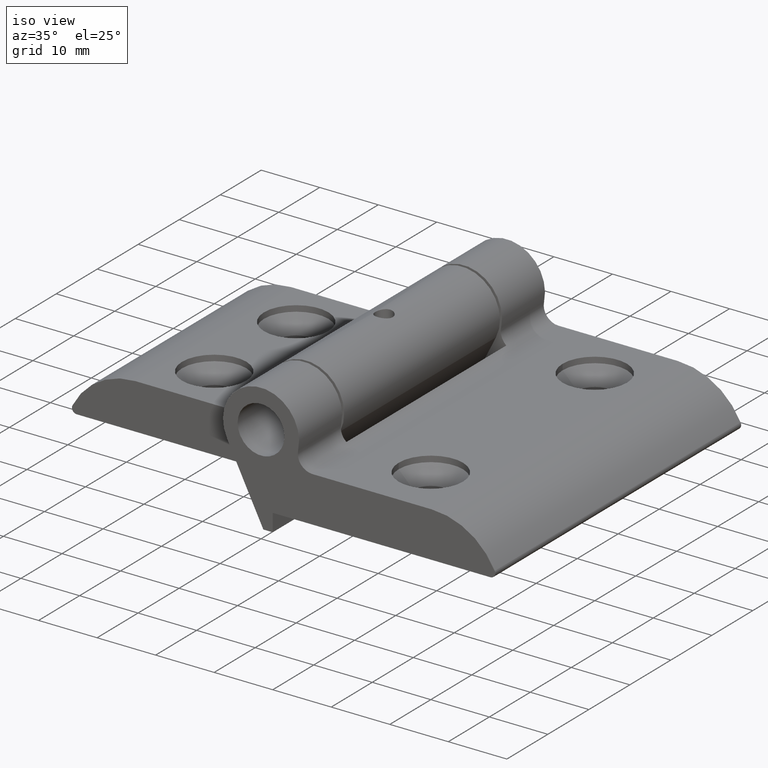
[diagram: clean part render]
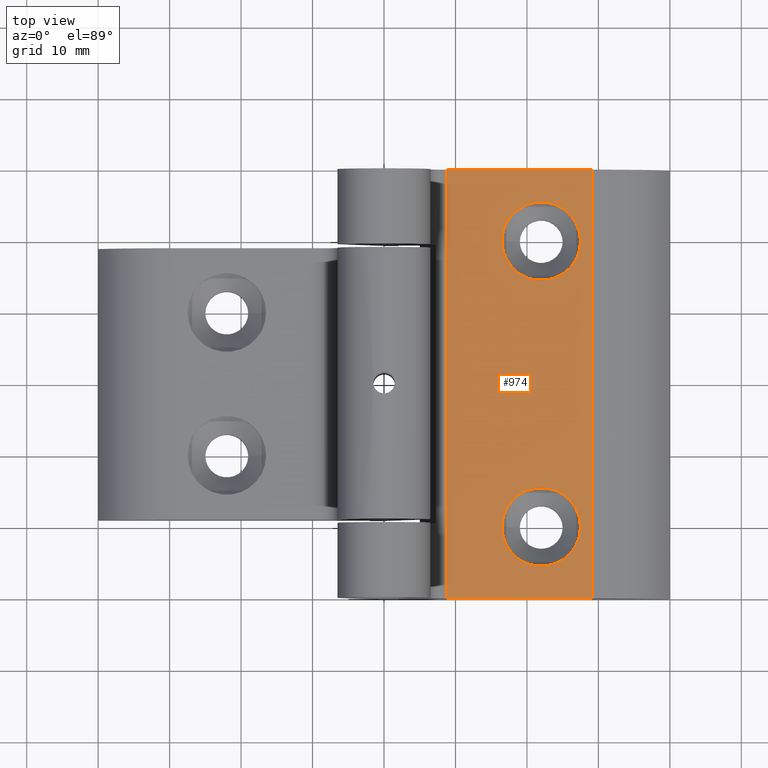
[diagram: tour spotlight — one face highlighted and labeled with its STEP entity id]
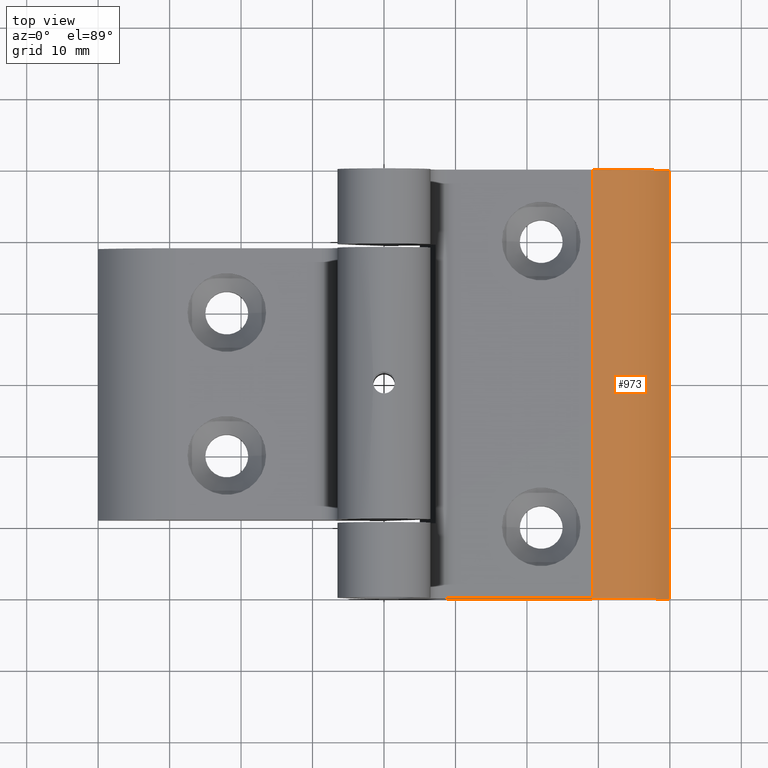
[diagram: tour spotlight — one face highlighted and labeled with its STEP entity id]
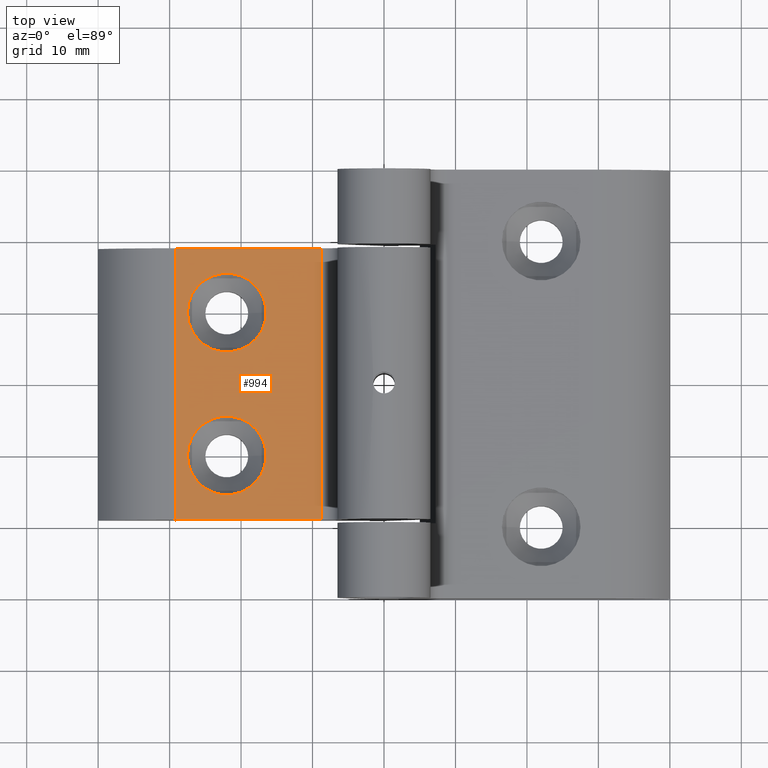
[diagram: tour spotlight — one face highlighted and labeled with its STEP entity id]
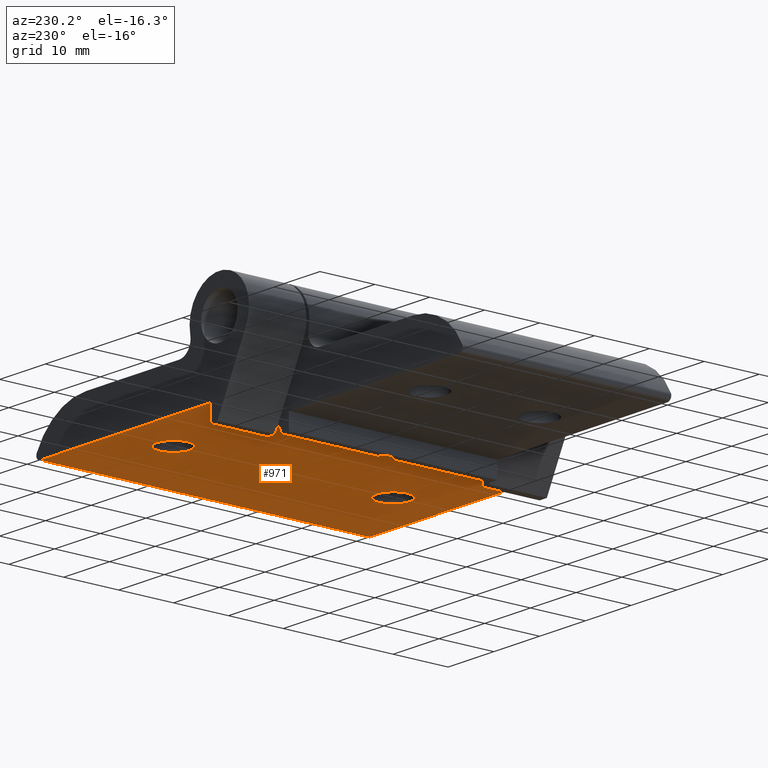
[diagram: tour spotlight — one face highlighted and labeled with its STEP entity id]
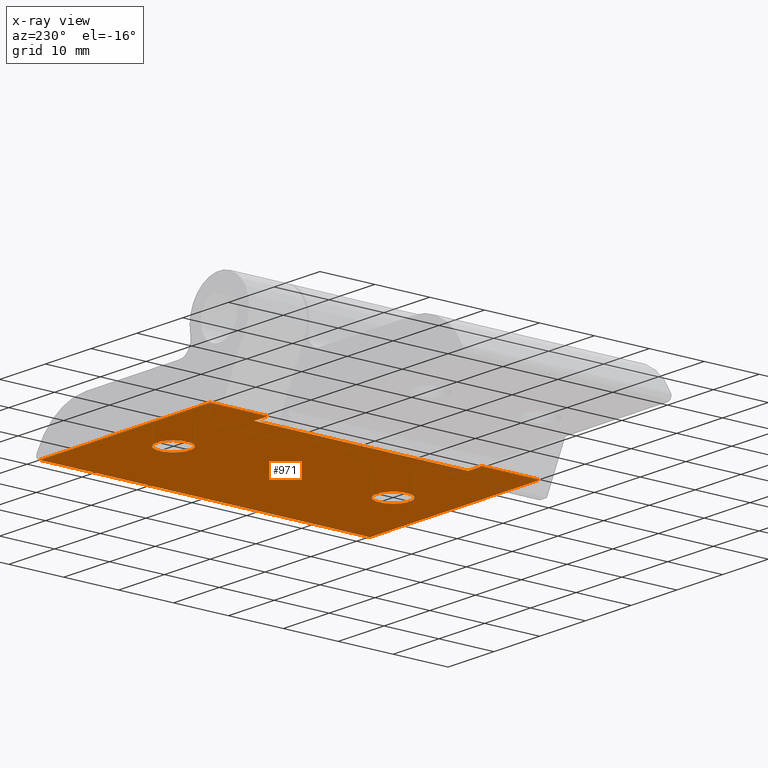
[diagram: x-ray of the same camera — body ghosted, this tour face saturated]
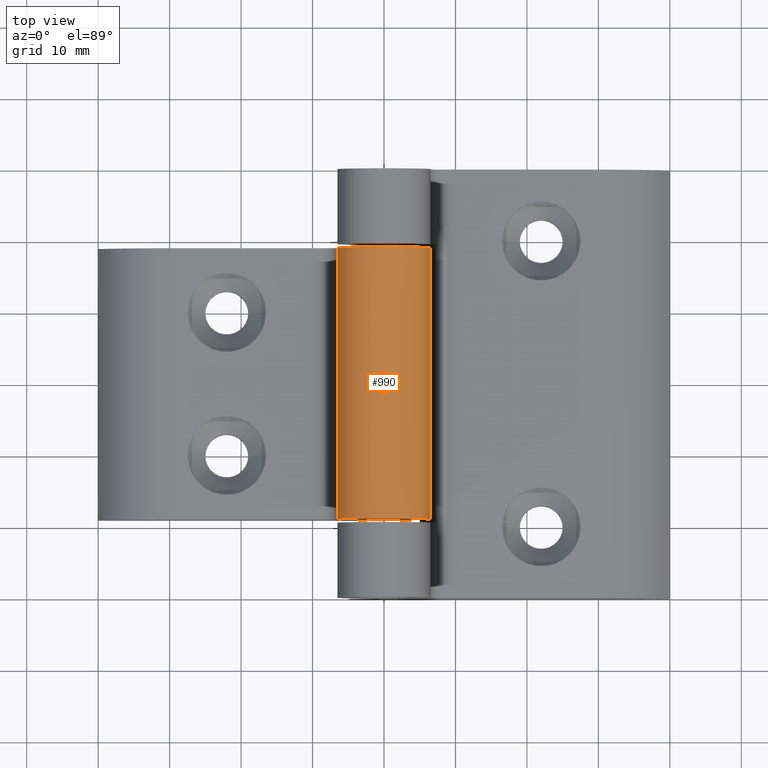
[diagram: tour spotlight — one face highlighted and labeled with its STEP entity id]
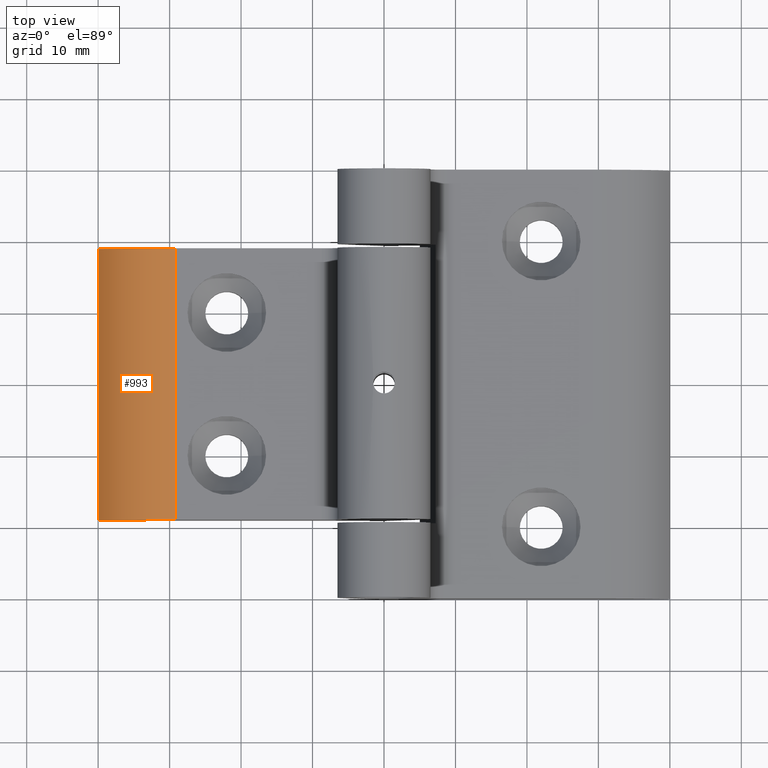
[diagram: tour spotlight — one face highlighted and labeled with its STEP entity id]
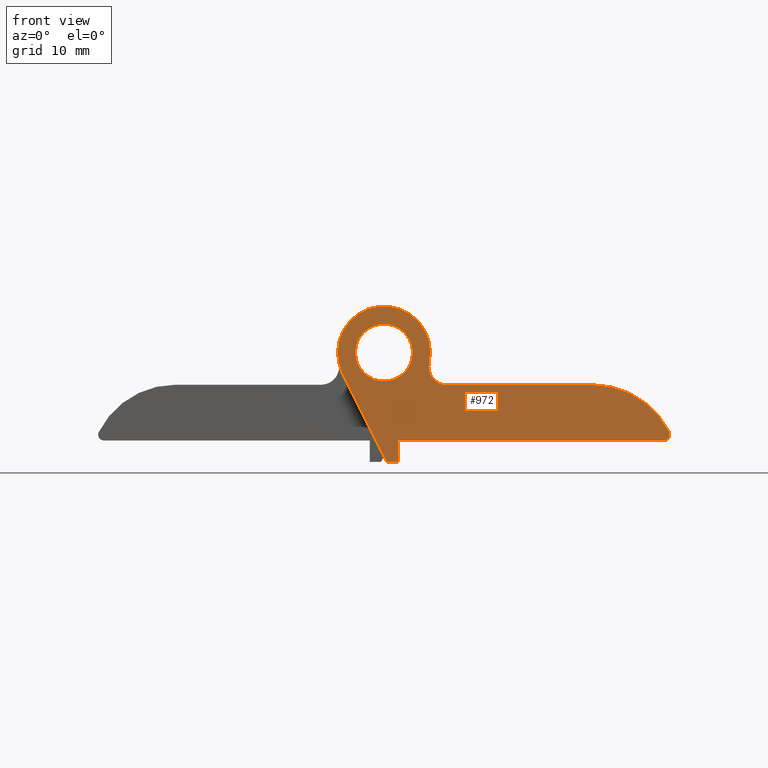
[diagram: tour spotlight — one face highlighted and labeled with its STEP entity id]
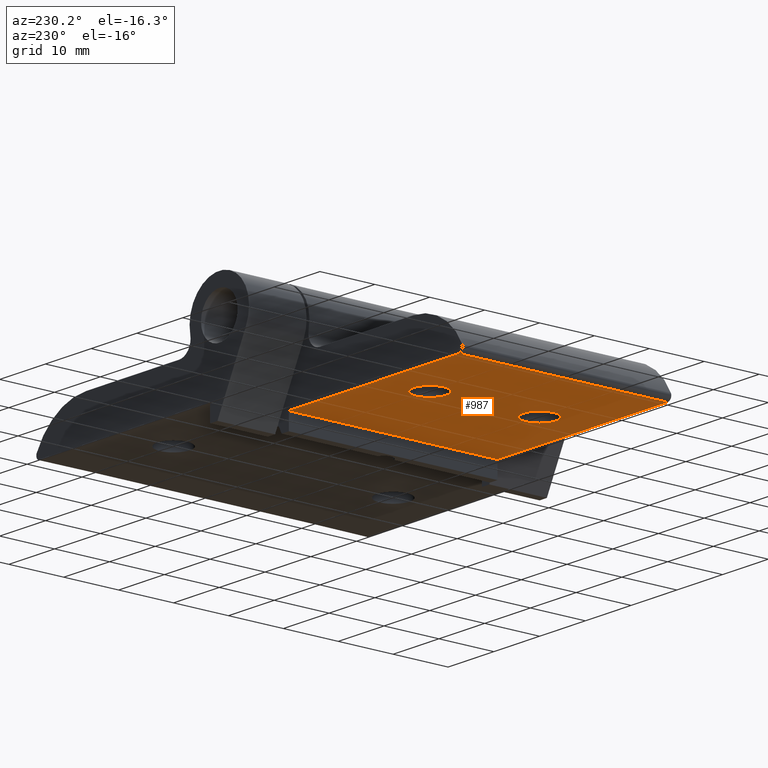
[diagram: tour spotlight — one face highlighted and labeled with its STEP entity id]
A machine part: a face-by-face anatomy tour. The part has 46 B-rep faces; the first image is the clean iso view, then the 8 largest visible faces are spotlighted one at a time (largest first), each with its STEP entity span.

Face 1 — top view, entity #974. In plain terms, the highlighted planar face has unit normal (0, 0, 1).
Definition (entity closure, byte-faithful):
#55=FACE_BOUND('',#183,.T.);
#56=FACE_BOUND('',#184,.T.);
#78=PLANE('',#1113);
#131=FACE_OUTER_BOUND('',#182,.T.);
#182=EDGE_LOOP('',(#794,#795,#796,#797));
#183=EDGE_LOOP('',(#798,#799));
#184=EDGE_LOOP('',(#800,#801));
#250=LINE('',#1567,#319);
#255=LINE('',#1643,#324);
#256=LINE('',#1647,#325);
#257=LINE('',#1649,#326);
#319=VECTOR('',#1287,10.);
#324=VECTOR('',#1310,10.);
#325=VECTOR('',#1315,10.);
#326=VECTOR('',#1318,10.);
#364=CIRCLE('',#1074,5.5);
#365=CIRCLE('',#1075,5.5);
#366=CIRCLE('',#1077,5.5);
#367=CIRCLE('',#1078,5.5);
#419=VERTEX_POINT('',#1475);
#420=VERTEX_POINT('',#1476);
#421=VERTEX_POINT('',#1481);
#422=VERTEX_POINT('',#1482);
#451=VERTEX_POINT('',#1564);
#452=VERTEX_POINT('',#1566);
#462=VERTEX_POINT('',#1641);
#463=VERTEX_POINT('',#1645);
#525=EDGE_CURVE('',#419,#420,#364,.T.);
#526=EDGE_CURVE('',#420,#419,#365,.T.);
#528=EDGE_CURVE('',#421,#422,#366,.T.);
#529=EDGE_CURVE('',#422,#421,#367,.T.);
#570=EDGE_CURVE('',#452,#451,#250,.T.);
#586=EDGE_CURVE('',#462,#451,#255,.T.);
#588=EDGE_CURVE('',#462,#463,#256,.T.);
#589=EDGE_CURVE('',#452,#463,#257,.T.);
#794=ORIENTED_EDGE('',*,*,#588,.T.);
#795=ORIENTED_EDGE('',*,*,#589,.F.);
#796=ORIENTED_EDGE('',*,*,#570,.T.);
#797=ORIENTED_EDGE('',*,*,#586,.F.);
#798=ORIENTED_EDGE('',*,*,#525,.T.);
#799=ORIENTED_EDGE('',*,*,#526,.T.);
#800=ORIENTED_EDGE('',*,*,#528,.T.);
#801=ORIENTED_EDGE('',*,*,#529,.T.);
#974=ADVANCED_FACE('',(#131,#55,#56),#78,.T.);
#1074=AXIS2_PLACEMENT_3D('',#1477,#1201,#1202);
#1075=AXIS2_PLACEMENT_3D('',#1478,#1203,#1204);
#1077=AXIS2_PLACEMENT_3D('',#1483,#1208,#1209);
#1078=AXIS2_PLACEMENT_3D('',#1484,#1210,#1211);
#1113=AXIS2_PLACEMENT_3D('',#1648,#1316,#1317);
#1201=DIRECTION('center_axis',(-1.087908341283E-16,0.,-1.));
#1202=DIRECTION('ref_axis',(1.,0.,-1.087908341283E-16));
#1203=DIRECTION('center_axis',(-1.087908341283E-16,0.,-1.));
#1204=DIRECTION('ref_axis',(1.,0.,-1.087908341283E-16));
#1208=DIRECTION('center_axis',(-1.087908341283E-16,0.,-1.));
#1209=DIRECTION('ref_axis',(1.,0.,-1.087908341283E-16));
#1210=DIRECTION('center_axis',(-1.087908341283E-16,0.,-1.));
#1211=DIRECTION('ref_axis',(1.,0.,-1.087908341283E-16));
#1287=DIRECTION('',(0.,-1.,0.));
#1310=DIRECTION('',(-1.,0.,1.087908341283E-16));
#1315=DIRECTION('',(0.,1.,0.));
#1316=DIRECTION('center_axis',(1.087908341283E-16,0.,1.));
#1317=DIRECTION('ref_axis',(1.,0.,-1.087908341283E-16));
#1318=DIRECTION('',(1.,0.,-1.087908341283E-16));
#1475=CARTESIAN_POINT('',(27.5,-20.,-4.5));
#1476=CARTESIAN_POINT('',(16.5,-20.,-4.5));
#1477=CARTESIAN_POINT('Origin',(22.,-20.,-4.5));
#1478=CARTESIAN_POINT('Origin',(22.,-20.,-4.5));
#1481=CARTESIAN_POINT('',(27.5,20.,-4.5));
#1482=CARTESIAN_POINT('',(16.5,20.,-4.5));
#1483=CARTESIAN_POINT('Origin',(22.,20.,-4.5));
#1484=CARTESIAN_POINT('Origin',(22.,20.,-4.5));
#1564=CARTESIAN_POINT('',(8.77496438739212,-30.,-4.5));
#1566=CARTESIAN_POINT('',(8.77496438739212,30.,-4.5));
#1567=CARTESIAN_POINT('',(8.77496438739212,0.,-4.5));
#1641=CARTESIAN_POINT('',(29.1851953323234,-30.,-4.5));
#1643=CARTESIAN_POINT('',(8.77496438739212,-30.,-4.5));
#1645=CARTESIAN_POINT('',(29.1851953323234,30.,-4.5));
#1647=CARTESIAN_POINT('',(29.1851953323234,0.,-4.5));
#1648=CARTESIAN_POINT('Origin',(8.77496438739212,0.,-4.5));
#1649=CARTESIAN_POINT('',(8.77496438739212,30.,-4.5));

Face 2 — top view, entity #973. In plain terms, the highlighted cylindrical surface (partial cylindrical patch) has radius 12 mm, axis along (0, 1, 0).
Definition (entity closure, byte-faithful):
#33=B_SPLINE_CURVE_WITH_KNOTS('',3,(#1629,#1630,#1631,#1632),
 .UNSPECIFIED.,.F.,.F.,(4,4),(0.,6.),.UNSPECIFIED.);
#96=CYLINDRICAL_SURFACE('',#1111,12.);
#130=FACE_OUTER_BOUND('',#181,.T.);
#181=EDGE_LOOP('',(#790,#791,#792,#793));
#256=LINE('',#1647,#325);
#325=VECTOR('',#1315,10.);
#383=CIRCLE('',#1110,12.);
#384=CIRCLE('',#1112,12.);
#460=VERTEX_POINT('',#1623);
#461=VERTEX_POINT('',#1628);
#462=VERTEX_POINT('',#1641);
#463=VERTEX_POINT('',#1645);
#581=EDGE_CURVE('',#460,#461,#33,.T.);
#585=EDGE_CURVE('',#461,#462,#383,.T.);
#587=EDGE_CURVE('',#463,#460,#384,.T.);
#588=EDGE_CURVE('',#462,#463,#256,.T.);
#790=ORIENTED_EDGE('',*,*,#581,.F.);
#791=ORIENTED_EDGE('',*,*,#587,.F.);
#792=ORIENTED_EDGE('',*,*,#588,.F.);
#793=ORIENTED_EDGE('',*,*,#585,.F.);
#973=ADVANCED_FACE('',(#130),#96,.T.);
#1110=AXIS2_PLACEMENT_3D('',#1642,#1308,#1309);
#1111=AXIS2_PLACEMENT_3D('',#1644,#1311,#1312);
#1112=AXIS2_PLACEMENT_3D('',#1646,#1313,#1314);
#1308=DIRECTION('center_axis',(0.,-1.,0.));
#1309=DIRECTION('ref_axis',(0.,0.,1.));
#1311=DIRECTION('center_axis',(0.,1.,0.));
#1312=DIRECTION('ref_axis',(0.,0.,1.));
#1313=DIRECTION('center_axis',(0.,1.,0.));
#1314=DIRECTION('ref_axis',(0.,0.,1.));
#1315=DIRECTION('',(0.,1.,0.));
#1623=CARTESIAN_POINT('',(39.9140261061395,30.,-11.1248543994776));
#1628=CARTESIAN_POINT('',(39.9140261061395,-30.,-11.1248543994776));
#1629=CARTESIAN_POINT('Ctrl Pts',(39.9140261061395,30.,-11.1248543994776));
#1630=CARTESIAN_POINT('Ctrl Pts',(39.9140261061395,10.,-11.1248543994776));
#1631=CARTESIAN_POINT('Ctrl Pts',(39.9140261061395,-10.,-11.1248543994776));
#1632=CARTESIAN_POINT('Ctrl Pts',(39.9140261061395,-30.,-11.1248543994776));
#1641=CARTESIAN_POINT('',(29.1851953323234,-30.,-4.5));
#1642=CARTESIAN_POINT('Origin',(29.1851953323234,-30.,-16.5));
#1644=CARTESIAN_POINT('Origin',(29.1851953323234,0.,-16.5));
#1645=CARTESIAN_POINT('',(29.1851953323234,30.,-4.5));
#1646=CARTESIAN_POINT('Origin',(29.1851953323234,30.,-16.5));
#1647=CARTESIAN_POINT('',(29.1851953323234,0.,-4.5));

Face 3 — top view, entity #994. In plain terms, the highlighted planar face has unit normal (-0, -0, 1).
Definition (entity closure, byte-faithful):
#64=FACE_BOUND('',#212,.T.);
#65=FACE_BOUND('',#213,.T.);
#85=PLANE('',#1159);
#151=FACE_OUTER_BOUND('',#211,.T.);
#211=EDGE_LOOP('',(#926,#927,#928,#929));
#212=EDGE_LOOP('',(#930,#931));
#213=EDGE_LOOP('',(#932,#933));
#275=LINE('',#1906,#344);
#278=LINE('',#1915,#347);
#283=LINE('',#1930,#352);
#284=LINE('',#1932,#353);
#344=VECTOR('',#1406,10.);
#347=VECTOR('',#1415,10.);
#352=VECTOR('',#1434,10.);
#353=VECTOR('',#1437,10.);
#396=CIRCLE('',#1137,5.5);
#397=CIRCLE('',#1138,5.5);
#398=CIRCLE('',#1140,5.5);
#399=CIRCLE('',#1141,5.5);
#488=VERTEX_POINT('',#1819);
#489=VERTEX_POINT('',#1820);
#490=VERTEX_POINT('',#1825);
#491=VERTEX_POINT('',#1826);
#503=VERTEX_POINT('',#1903);
#504=VERTEX_POINT('',#1905);
#507=VERTEX_POINT('',#1914);
#510=VERTEX_POINT('',#1928);
#621=EDGE_CURVE('',#488,#489,#396,.T.);
#622=EDGE_CURVE('',#489,#488,#397,.T.);
#624=EDGE_CURVE('',#490,#491,#398,.T.);
#625=EDGE_CURVE('',#491,#490,#399,.T.);
#641=EDGE_CURVE('',#503,#504,#275,.T.);
#646=EDGE_CURVE('',#507,#504,#278,.T.);
#654=EDGE_CURVE('',#503,#510,#283,.T.);
#655=EDGE_CURVE('',#507,#510,#284,.T.);
#926=ORIENTED_EDGE('',*,*,#654,.T.);
#927=ORIENTED_EDGE('',*,*,#655,.F.);
#928=ORIENTED_EDGE('',*,*,#646,.T.);
#929=ORIENTED_EDGE('',*,*,#641,.F.);
#930=ORIENTED_EDGE('',*,*,#621,.T.);
#931=ORIENTED_EDGE('',*,*,#622,.T.);
#932=ORIENTED_EDGE('',*,*,#624,.T.);
#933=ORIENTED_EDGE('',*,*,#625,.T.);
#994=ADVANCED_FACE('',(#151,#64,#65),#85,.T.);
#1137=AXIS2_PLACEMENT_3D('',#1821,#1376,#1377);
#1138=AXIS2_PLACEMENT_3D('',#1822,#1378,#1379);
#1140=AXIS2_PLACEMENT_3D('',#1827,#1383,#1384);
#1141=AXIS2_PLACEMENT_3D('',#1828,#1385,#1386);
#1159=AXIS2_PLACEMENT_3D('',#1931,#1435,#1436);
#1376=DIRECTION('center_axis',(-1.087908341283E-16,0.,-1.));
#1377=DIRECTION('ref_axis',(1.,0.,-1.087908341283E-16));
#1378=DIRECTION('center_axis',(-1.087908341283E-16,0.,-1.));
#1379=DIRECTION('ref_axis',(1.,0.,-1.087908341283E-16));
#1383=DIRECTION('center_axis',(-1.087908341283E-16,0.,-1.));
#1384=DIRECTION('ref_axis',(1.,0.,-1.087908341283E-16));
#1385=DIRECTION('center_axis',(-1.087908341283E-16,0.,-1.));
#1386=DIRECTION('ref_axis',(1.,0.,-1.087908341283E-16));
#1406=DIRECTION('',(-1.,0.,1.087908341283E-16));
#1415=DIRECTION('',(0.,-1.,0.));
#1434=DIRECTION('',(0.,1.,0.));
#1435=DIRECTION('center_axis',(1.087908341283E-16,0.,1.));
#1436=DIRECTION('ref_axis',(1.,0.,-1.087908341283E-16));
#1437=DIRECTION('',(1.,0.,-1.087908341283E-16));
#1819=CARTESIAN_POINT('',(27.5,-10.,-4.5));
#1820=CARTESIAN_POINT('',(16.5,-10.,-4.5));
#1821=CARTESIAN_POINT('Origin',(22.,-10.,-4.5));
#1822=CARTESIAN_POINT('Origin',(22.,-10.,-4.5));
#1825=CARTESIAN_POINT('',(27.5,10.,-4.5));
#1826=CARTESIAN_POINT('',(16.5,10.,-4.5));
#1827=CARTESIAN_POINT('Origin',(22.,10.,-4.5));
#1828=CARTESIAN_POINT('Origin',(22.,10.,-4.5));
#1903=CARTESIAN_POINT('',(29.1851953323234,-19.,-4.5));
#1905=CARTESIAN_POINT('',(8.77496438739212,-19.,-4.5));
#1906=CARTESIAN_POINT('',(8.77496438739212,-19.,-4.5));
#1914=CARTESIAN_POINT('',(8.77496438739212,19.,-4.5));
#1915=CARTESIAN_POINT('',(8.77496438739212,0.,-4.5));
#1928=CARTESIAN_POINT('',(29.1851953323234,19.,-4.5));
#1930=CARTESIAN_POINT('',(29.1851953323234,0.,-4.5));
#1931=CARTESIAN_POINT('Origin',(8.77496438739212,0.,-4.5));
#1932=CARTESIAN_POINT('',(8.77496438739212,19.,-4.5));

Face 4 — auxiliary view, entity #971. An x-ray twin of the same camera follows (body ghosted, this face saturated) — the face is partly hidden behind the body. In plain terms, the highlighted planar face has unit normal (0, 0, -1).
Definition (entity closure, byte-faithful):
#30=B_SPLINE_CURVE_WITH_KNOTS('',3,(#1612,#1613,#1614,#1615),
 .UNSPECIFIED.,.F.,.F.,(4,4),(-6.,0.),.UNSPECIFIED.);
#52=FACE_BOUND('',#177,.T.);
#53=FACE_BOUND('',#178,.T.);
#76=PLANE('',#1108);
#128=FACE_OUTER_BOUND('',#176,.T.);
#176=EDGE_LOOP('',(#769,#770,#771,#772,#773,#774,#775,#776));
#177=EDGE_LOOP('',(#777));
#178=EDGE_LOOP('',(#778));
#223=LINE('',#1493,#292);
#227=LINE('',#1507,#296);
#233=LINE('',#1522,#302);
#234=LINE('',#1529,#303);
#239=LINE('',#1538,#308);
#253=LINE('',#1638,#322);
#254=LINE('',#1639,#323);
#292=VECTOR('',#1218,10.);
#296=VECTOR('',#1230,10.);
#302=VECTOR('',#1242,10.);
#303=VECTOR('',#1249,10.);
#308=VECTOR('',#1256,10.);
#322=VECTOR('',#1304,10.);
#323=VECTOR('',#1305,10.);
#358=CIRCLE('',#1065,3.);
#363=CIRCLE('',#1072,3.);
#413=VERTEX_POINT('',#1457);
#418=VERTEX_POINT('',#1471);
#425=VERTEX_POINT('',#1490);
#426=VERTEX_POINT('',#1492);
#432=VERTEX_POINT('',#1506);
#438=VERTEX_POINT('',#1520);
#441=VERTEX_POINT('',#1528);
#444=VERTEX_POINT('',#1536);
#457=VERTEX_POINT('',#1604);
#458=VERTEX_POINT('',#1611);
#517=EDGE_CURVE('',#413,#413,#358,.T.);
#524=EDGE_CURVE('',#418,#418,#363,.T.);
#533=EDGE_CURVE('',#426,#425,#223,.T.);
#540=EDGE_CURVE('',#425,#432,#227,.T.);
#548=EDGE_CURVE('',#432,#438,#233,.T.);
#551=EDGE_CURVE('',#441,#426,#234,.T.);
#556=EDGE_CURVE('',#438,#444,#239,.T.);
#578=EDGE_CURVE('',#457,#458,#30,.T.);
#583=EDGE_CURVE('',#458,#444,#253,.T.);
#584=EDGE_CURVE('',#441,#457,#254,.T.);
#769=ORIENTED_EDGE('',*,*,#548,.T.);
#770=ORIENTED_EDGE('',*,*,#556,.T.);
#771=ORIENTED_EDGE('',*,*,#583,.F.);
#772=ORIENTED_EDGE('',*,*,#578,.F.);
#773=ORIENTED_EDGE('',*,*,#584,.F.);
#774=ORIENTED_EDGE('',*,*,#551,.T.);
#775=ORIENTED_EDGE('',*,*,#533,.T.);
#776=ORIENTED_EDGE('',*,*,#540,.T.);
#777=ORIENTED_EDGE('',*,*,#517,.T.);
#778=ORIENTED_EDGE('',*,*,#524,.T.);
#971=ADVANCED_FACE('',(#128,#52,#53),#76,.T.);
#1065=AXIS2_PLACEMENT_3D('',#1459,#1181,#1182);
#1072=AXIS2_PLACEMENT_3D('',#1473,#1197,#1198);
#1108=AXIS2_PLACEMENT_3D('',#1637,#1302,#1303);
#1181=DIRECTION('center_axis',(0.,0.,1.));
#1182=DIRECTION('ref_axis',(1.,0.,-1.087908341283E-16));
#1197=DIRECTION('center_axis',(0.,0.,1.));
#1198=DIRECTION('ref_axis',(1.,0.,-1.087908341283E-16));
#1218=DIRECTION('',(1.,9.14356323852182E-17,0.));
#1230=DIRECTION('',(0.,1.,0.));
#1242=DIRECTION('',(-1.,-9.14356323852182E-17,0.));
#1249=DIRECTION('',(0.,1.,0.));
#1256=DIRECTION('',(0.,1.,0.));
#1302=DIRECTION('center_axis',(0.,0.,-1.));
#1303=DIRECTION('ref_axis',(-1.,0.,0.));
#1304=DIRECTION('',(-1.,0.,0.));
#1305=DIRECTION('',(1.,0.,0.));
#1457=CARTESIAN_POINT('',(19.,20.,-12.3));
#1459=CARTESIAN_POINT('Origin',(22.,20.,-12.3));
#1471=CARTESIAN_POINT('',(19.,-20.,-12.3));
#1473=CARTESIAN_POINT('Origin',(22.,-20.,-12.3));
#1490=CARTESIAN_POINT('',(5.,-19.5,-12.3));
#1492=CARTESIAN_POINT('',(2.,-19.5,-12.3));
#1493=CARTESIAN_POINT('',(20.3970287649531,-19.5,-12.3));
#1506=CARTESIAN_POINT('',(5.,19.5,-12.3));
#1507=CARTESIAN_POINT('',(5.,0.,-12.3));
#1520=CARTESIAN_POINT('',(2.,19.5,-12.3));
#1522=CARTESIAN_POINT('',(20.3970287649531,19.5,-12.3));
#1528=CARTESIAN_POINT('',(2.,-30.,-12.3));
#1529=CARTESIAN_POINT('',(2.,0.,-12.3));
#1536=CARTESIAN_POINT('',(2.,30.,-12.3));
#1538=CARTESIAN_POINT('',(2.,0.,-12.3));
#1604=CARTESIAN_POINT('',(39.1883954511527,-30.,-12.3));
#1611=CARTESIAN_POINT('',(39.1883954511527,30.,-12.3));
#1612=CARTESIAN_POINT('Ctrl Pts',(39.1883954511527,-30.,-12.3));
#1613=CARTESIAN_POINT('Ctrl Pts',(39.1883954511527,-10.,-12.3));
#1614=CARTESIAN_POINT('Ctrl Pts',(39.1883954511527,10.,-12.3));
#1615=CARTESIAN_POINT('Ctrl Pts',(39.1883954511527,30.,-12.3));
#1637=CARTESIAN_POINT('Origin',(40.,0.,-12.3));
#1638=CARTESIAN_POINT('',(40.,30.,-12.3));
#1639=CARTESIAN_POINT('',(40.,-30.,-12.3));

Face 5 — top view, entity #990. In plain terms, the highlighted cylindrical surface (partial cylindrical patch) has radius 6.5 mm, axis along (-0, -1, -0).
Definition (entity closure, byte-faithful):
#37=B_SPLINE_CURVE_WITH_KNOTS('',3,(#1701,#1702,#1703,#1704,#1705,#1706,
#1707,#1708,#1709,#1710),.UNSPECIFIED.,.F.,.F.,(4,2,2,2,4),(0.226894930763908,
0.28361581006064,0.340336689357371,0.397063275442594,0.453789861527817),
 .UNSPECIFIED.);
#38=B_SPLINE_CURVE_WITH_KNOTS('',3,(#1712,#1713,#1714,#1715,#1716,#1717,
#1718,#1719,#1720,#1721,#1722,#1723,#1724,#1725,#1726,#1727,#1728,#1729,
#1730),.UNSPECIFIED.,.F.,.F.,(4,2,2,2,3,2,2,2,4),(0.680684792291726,0.737405671588457,
0.794126550885188,0.850853136970411,0.907579723055634,0.964306309140857,
1.02103289522608,1.07775377452281,1.13447465381954),.UNSPECIFIED.);
#39=B_SPLINE_CURVE_WITH_KNOTS('',3,(#1731,#1732,#1733,#1734,#1735,#1736,
#1737,#1738,#1739,#1740),.UNSPECIFIED.,.F.,.F.,(4,2,2,2,4),(0.453789861527817,
0.51051644761304,0.567243033698263,0.623963912994995,0.680684792291726),
 .UNSPECIFIED.);
#63=FACE_BOUND('',#207,.T.);
#105=CYLINDRICAL_SURFACE('',#1153,6.5);
#147=FACE_OUTER_BOUND('',#206,.T.);
#206=EDGE_LOOP('',(#904,#905,#906,#907));
#207=EDGE_LOOP('',(#908,#909,#910));
#279=LINE('',#1918,#348);
#280=LINE('',#1922,#349);
#348=VECTOR('',#1418,10.);
#349=VECTOR('',#1423,10.);
#405=CIRCLE('',#1150,6.5);
#407=CIRCLE('',#1154,6.5);
#469=VERTEX_POINT('',#1699);
#470=VERTEX_POINT('',#1700);
#471=VERTEX_POINT('',#1711);
#505=VERTEX_POINT('',#1907);
#506=VERTEX_POINT('',#1909);
#508=VERTEX_POINT('',#1916);
#509=VERTEX_POINT('',#1920);
#596=EDGE_CURVE('',#469,#470,#37,.T.);
#597=EDGE_CURVE('',#471,#469,#38,.T.);
#598=EDGE_CURVE('',#470,#471,#39,.T.);
#643=EDGE_CURVE('',#505,#506,#405,.T.);
#648=EDGE_CURVE('',#505,#508,#279,.T.);
#649=EDGE_CURVE('',#509,#508,#407,.T.);
#650=EDGE_CURVE('',#506,#509,#280,.T.);
#904=ORIENTED_EDGE('',*,*,#648,.T.);
#905=ORIENTED_EDGE('',*,*,#649,.F.);
#906=ORIENTED_EDGE('',*,*,#650,.F.);
#907=ORIENTED_EDGE('',*,*,#643,.F.);
#908=ORIENTED_EDGE('',*,*,#596,.T.);
#909=ORIENTED_EDGE('',*,*,#598,.T.);
#910=ORIENTED_EDGE('',*,*,#597,.T.);
#990=ADVANCED_FACE('',(#147,#63),#105,.T.);
#1150=AXIS2_PLACEMENT_3D('',#1910,#1409,#1410);
#1153=AXIS2_PLACEMENT_3D('',#1919,#1419,#1420);
#1154=AXIS2_PLACEMENT_3D('',#1921,#1421,#1422);
#1409=DIRECTION('center_axis',(0.,-1.,0.));
#1410=DIRECTION('ref_axis',(-0.893929642887644,0.,-0.448207310925167));
#1418=DIRECTION('',(0.,1.,0.));
#1419=DIRECTION('center_axis',(0.,1.,0.));
#1420=DIRECTION('ref_axis',(-0.12004272317629,0.,0.992768726649072));
#1421=DIRECTION('center_axis',(0.,1.,0.));
#1422=DIRECTION('ref_axis',(-0.893929642887644,0.,-0.448207310925167));
#1423=DIRECTION('',(0.,1.,0.));
#1699=CARTESIAN_POINT('',(7.0714042183395E-16,-1.5,6.5));
#1700=CARTESIAN_POINT('',(-1.5,-1.26542979455588E-16,6.32455532033676));
#1701=CARTESIAN_POINT('Ctrl Pts',(3.81639164714898E-16,-1.5,6.5));
#1702=CARTESIAN_POINT('Ctrl Pts',(-0.18906959765577,-1.5,6.5));
#1703=CARTESIAN_POINT('Ctrl Pts',(-0.390282025550469,-1.46207527444948,
6.49092121899911));
#1704=CARTESIAN_POINT('Ctrl Pts',(-0.759656280108607,-1.30878053074464,
6.45811897296793));
#1705=CARTESIAN_POINT('Ctrl Pts',(-0.927872813177317,-1.19344753038233,
6.43484008136329));
#1706=CARTESIAN_POINT('Ctrl Pts',(-1.19346089035451,-0.927859453205128,
6.39091304734004));
#1707=CARTESIAN_POINT('Ctrl Pts',(-1.30878345284885,-0.759648529201041,
6.36735734859203));
#1708=CARTESIAN_POINT('Ctrl Pts',(-1.46207059898713,-0.3902940012866,6.33391691123816));
#1709=CARTESIAN_POINT('Ctrl Pts',(-1.5,-0.189088620284077,6.32455532033676));
#1710=CARTESIAN_POINT('Ctrl Pts',(-1.5,-6.93889390390723E-17,6.32455532033676));
#1711=CARTESIAN_POINT('',(7.0714042183395E-16,1.5,6.5));
#1712=CARTESIAN_POINT('Ctrl Pts',(9.0205620750794E-16,1.5,6.5));
#1713=CARTESIAN_POINT('Ctrl Pts',(0.189069597655771,1.5,6.5));
#1714=CARTESIAN_POINT('Ctrl Pts',(0.39028202555047,1.46207527444948,6.49092121899911));
#1715=CARTESIAN_POINT('Ctrl Pts',(0.759656280108608,1.30878053074464,6.45811897296793));
#1716=CARTESIAN_POINT('Ctrl Pts',(0.927872813177318,1.19344753038233,6.43484008136329));
#1717=CARTESIAN_POINT('Ctrl Pts',(1.19346089035452,0.927859453205128,6.39091304734004));
#1718=CARTESIAN_POINT('Ctrl Pts',(1.30878345284885,0.759648529201041,6.36735734859203));
#1719=CARTESIAN_POINT('Ctrl Pts',(1.46207059898713,0.3902940012866,6.33391691123815));
#1720=CARTESIAN_POINT('Ctrl Pts',(1.5,0.189088620284078,6.32455532033676));
#1721=CARTESIAN_POINT('Ctrl Pts',(1.5,0.,6.32455532033676));
#1722=CARTESIAN_POINT('Ctrl Pts',(1.5,-0.189088620284077,6.32455532033676));
#1723=CARTESIAN_POINT('Ctrl Pts',(1.46207059898713,-0.3902940012866,6.33391691123815));
#1724=CARTESIAN_POINT('Ctrl Pts',(1.30878345284885,-0.759648529201042,6.36735734859203));
#1725=CARTESIAN_POINT('Ctrl Pts',(1.19346089035452,-0.927859453205128,6.39091304734004));
#1726=CARTESIAN_POINT('Ctrl Pts',(0.927872813177318,-1.19344753038233,6.43484008136329));
#1727=CARTESIAN_POINT('Ctrl Pts',(0.759656280108607,-1.30878053074464,6.45811897296793));
#1728=CARTESIAN_POINT('Ctrl Pts',(0.390282025550469,-1.46207527444948,6.49092121899911));
#1729=CARTESIAN_POINT('Ctrl Pts',(0.189069597655771,-1.5,6.5));
#1730=CARTESIAN_POINT('Ctrl Pts',(4.16333634234434E-16,-1.5,6.5));
#1731=CARTESIAN_POINT('Ctrl Pts',(-1.5,0.,6.32455532033676));
#1732=CARTESIAN_POINT('Ctrl Pts',(-1.5,0.189088620284077,6.32455532033676));
#1733=CARTESIAN_POINT('Ctrl Pts',(-1.46207059898713,0.390294001286599,6.33391691123816));
#1734=CARTESIAN_POINT('Ctrl Pts',(-1.30878345284885,0.759648529201041,6.36735734859203));
#1735=CARTESIAN_POINT('Ctrl Pts',(-1.19346089035451,0.927859453205128,6.39091304734004));
#1736=CARTESIAN_POINT('Ctrl Pts',(-0.927872813177317,1.19344753038233,6.43484008136329));
#1737=CARTESIAN_POINT('Ctrl Pts',(-0.759656280108606,1.30878053074464,6.45811897296793));
#1738=CARTESIAN_POINT('Ctrl Pts',(-0.390282025550468,1.46207527444948,6.49092121899911));
#1739=CARTESIAN_POINT('Ctrl Pts',(-0.189069597655769,1.5,6.5));
#1740=CARTESIAN_POINT('Ctrl Pts',(9.36750677027476E-16,1.5,6.5));
#1907=CARTESIAN_POINT('',(6.3374742797832,-19.,-1.44444444444445));
#1909=CARTESIAN_POINT('',(-5.81054267876969,-19.,-2.91334752101359));
#1910=CARTESIAN_POINT('Origin',(0.,-19.,-1.38777878078145E-15));
#1916=CARTESIAN_POINT('',(6.3374742797832,19.,-1.44444444444445));
#1918=CARTESIAN_POINT('',(6.3374742797832,0.,-1.44444444444445));
#1919=CARTESIAN_POINT('Origin',(0.,0.,-1.38777878078145E-15));
#1920=CARTESIAN_POINT('',(-5.81054267876969,19.,-2.91334752101359));
#1921=CARTESIAN_POINT('Origin',(0.,19.,-1.38777878078145E-15));
#1922=CARTESIAN_POINT('',(-5.81054267876969,0.,-2.91334752101359));

Face 6 — top view, entity #993. In plain terms, the highlighted cylindrical surface (partial cylindrical patch) has radius 12 mm, axis along (-0, -1, -0).
Definition (entity closure, byte-faithful):
#46=B_SPLINE_CURVE_WITH_KNOTS('',3,(#1888,#1889,#1890,#1891),
 .UNSPECIFIED.,.F.,.F.,(4,4),(0.,3.8),.UNSPECIFIED.);
#106=CYLINDRICAL_SURFACE('',#1157,12.);
#150=FACE_OUTER_BOUND('',#210,.T.);
#210=EDGE_LOOP('',(#922,#923,#924,#925));
#283=LINE('',#1930,#352);
#352=VECTOR('',#1434,10.);
#403=CIRCLE('',#1148,12.);
#408=CIRCLE('',#1158,12.);
#499=VERTEX_POINT('',#1882);
#500=VERTEX_POINT('',#1887);
#503=VERTEX_POINT('',#1903);
#510=VERTEX_POINT('',#1928);
#635=EDGE_CURVE('',#499,#500,#46,.T.);
#640=EDGE_CURVE('',#500,#503,#403,.T.);
#653=EDGE_CURVE('',#510,#499,#408,.T.);
#654=EDGE_CURVE('',#503,#510,#283,.T.);
#922=ORIENTED_EDGE('',*,*,#635,.F.);
#923=ORIENTED_EDGE('',*,*,#653,.F.);
#924=ORIENTED_EDGE('',*,*,#654,.F.);
#925=ORIENTED_EDGE('',*,*,#640,.F.);
#993=ADVANCED_FACE('',(#150),#106,.T.);
#1148=AXIS2_PLACEMENT_3D('',#1904,#1404,#1405);
#1157=AXIS2_PLACEMENT_3D('',#1927,#1430,#1431);
#1158=AXIS2_PLACEMENT_3D('',#1929,#1432,#1433);
#1404=DIRECTION('center_axis',(0.,-1.,0.));
#1405=DIRECTION('ref_axis',(0.,0.,1.));
#1430=DIRECTION('center_axis',(0.,1.,0.));
#1431=DIRECTION('ref_axis',(0.,0.,1.));
#1432=DIRECTION('center_axis',(0.,1.,0.));
#1433=DIRECTION('ref_axis',(0.,0.,1.));
#1434=DIRECTION('',(0.,1.,0.));
#1882=CARTESIAN_POINT('',(39.9140261061395,19.,-11.1248543994776));
#1887=CARTESIAN_POINT('',(39.9140261061395,-19.,-11.1248543994776));
#1888=CARTESIAN_POINT('Ctrl Pts',(39.9140261061395,19.,-11.1248543994776));
#1889=CARTESIAN_POINT('Ctrl Pts',(39.9140261061395,6.33333333333334,-11.1248543994776));
#1890=CARTESIAN_POINT('Ctrl Pts',(39.9140261061395,-6.33333333333334,-11.1248543994776));
#1891=CARTESIAN_POINT('Ctrl Pts',(39.9140261061395,-19.,-11.1248543994776));
#1903=CARTESIAN_POINT('',(29.1851953323234,-19.,-4.5));
#1904=CARTESIAN_POINT('Origin',(29.1851953323234,-19.,-16.5));
#1927=CARTESIAN_POINT('Origin',(29.1851953323234,0.,-16.5));
#1928=CARTESIAN_POINT('',(29.1851953323234,19.,-4.5));
#1929=CARTESIAN_POINT('Origin',(29.1851953323234,19.,-16.5));
#1930=CARTESIAN_POINT('',(29.1851953323234,0.,-4.5));

Face 7 — front view, entity #972. In plain terms, the highlighted planar face has unit normal (0, 1, 0).
Definition (entity closure, byte-faithful):
#29=B_SPLINE_CURVE_WITH_KNOTS('',3,(#1605,#1606,#1607,#1608,#1609,#1610),
 .UNSPECIFIED.,.F.,.F.,(4,1,1,4),(0.228202346334164,0.285714285714286,0.571428571428571,
1.),.UNSPECIFIED.);
#34=B_SPLINE_CURVE_WITH_KNOTS('',3,(#1633,#1634,#1635,#1636),
 .UNSPECIFIED.,.F.,.F.,(4,4),(0.,0.228202346334164),.UNSPECIFIED.);
#54=FACE_BOUND('',#180,.T.);
#77=PLANE('',#1109);
#129=FACE_OUTER_BOUND('',#179,.T.);
#179=EDGE_LOOP('',(#779,#780,#781,#782,#783,#784,#785,#786,#787,#788));
#180=EDGE_LOOP('',(#789));
#235=LINE('',#1531,#304);
#240=LINE('',#1541,#309);
#244=LINE('',#1549,#313);
#254=LINE('',#1639,#323);
#255=LINE('',#1643,#324);
#304=VECTOR('',#1250,10.);
#309=VECTOR('',#1259,10.);
#313=VECTOR('',#1267,10.);
#323=VECTOR('',#1305,10.);
#324=VECTOR('',#1310,10.);
#376=CIRCLE('',#1097,6.5);
#378=CIRCLE('',#1101,2.5);
#382=CIRCLE('',#1107,4.);
#383=CIRCLE('',#1110,12.);
#441=VERTEX_POINT('',#1528);
#442=VERTEX_POINT('',#1530);
#445=VERTEX_POINT('',#1540);
#447=VERTEX_POINT('',#1548);
#449=VERTEX_POINT('',#1556);
#451=VERTEX_POINT('',#1564);
#455=VERTEX_POINT('',#1576);
#456=VERTEX_POINT('',#1603);
#457=VERTEX_POINT('',#1604);
#461=VERTEX_POINT('',#1628);
#462=VERTEX_POINT('',#1641);
#552=EDGE_CURVE('',#442,#441,#235,.T.);
#557=EDGE_CURVE('',#445,#442,#240,.T.);
#561=EDGE_CURVE('',#447,#445,#244,.T.);
#565=EDGE_CURVE('',#449,#447,#376,.T.);
#569=EDGE_CURVE('',#451,#449,#378,.T.);
#576=EDGE_CURVE('',#455,#455,#382,.T.);
#577=EDGE_CURVE('',#456,#457,#29,.T.);
#582=EDGE_CURVE('',#461,#456,#34,.T.);
#584=EDGE_CURVE('',#441,#457,#254,.T.);
#585=EDGE_CURVE('',#461,#462,#383,.T.);
#586=EDGE_CURVE('',#462,#451,#255,.T.);
#779=ORIENTED_EDGE('',*,*,#577,.F.);
#780=ORIENTED_EDGE('',*,*,#582,.F.);
#781=ORIENTED_EDGE('',*,*,#585,.T.);
#782=ORIENTED_EDGE('',*,*,#586,.T.);
#783=ORIENTED_EDGE('',*,*,#569,.T.);
#784=ORIENTED_EDGE('',*,*,#565,.T.);
#785=ORIENTED_EDGE('',*,*,#561,.T.);
#786=ORIENTED_EDGE('',*,*,#557,.T.);
#787=ORIENTED_EDGE('',*,*,#552,.T.);
#788=ORIENTED_EDGE('',*,*,#584,.T.);
#789=ORIENTED_EDGE('',*,*,#576,.T.);
#972=ADVANCED_FACE('',(#129,#54),#77,.F.);
#1097=AXIS2_PLACEMENT_3D('',#1557,#1275,#1276);
#1101=AXIS2_PLACEMENT_3D('',#1565,#1285,#1286);
#1107=AXIS2_PLACEMENT_3D('',#1578,#1300,#1301);
#1109=AXIS2_PLACEMENT_3D('',#1640,#1306,#1307);
#1110=AXIS2_PLACEMENT_3D('',#1642,#1308,#1309);
#1250=DIRECTION('',(1.85037170770859E-16,0.,1.));
#1259=DIRECTION('',(1.,0.,0.));
#1267=DIRECTION('',(0.448207310925167,0.,-0.893929642887644));
#1275=DIRECTION('center_axis',(0.,-1.,0.));
#1276=DIRECTION('ref_axis',(-0.893929642887644,0.,-0.448207310925167));
#1285=DIRECTION('center_axis',(0.,1.,0.));
#1286=DIRECTION('ref_axis',(0.,0.,1.));
#1300=DIRECTION('center_axis',(0.,1.,0.));
#1301=DIRECTION('ref_axis',(-1.,0.,0.));
#1305=DIRECTION('',(1.,0.,0.));
#1306=DIRECTION('center_axis',(0.,1.,0.));
#1307=DIRECTION('ref_axis',(0.,0.,1.));
#1308=DIRECTION('center_axis',(0.,-1.,0.));
#1309=DIRECTION('ref_axis',(0.,0.,1.));
#1310=DIRECTION('',(-1.,0.,1.087908341283E-16));
#1528=CARTESIAN_POINT('',(2.,-30.,-12.3));
#1530=CARTESIAN_POINT('',(2.,-30.,-15.3));
#1531=CARTESIAN_POINT('',(2.,-30.,-12.3));
#1540=CARTESIAN_POINT('',(0.399999999999999,-30.,-15.3));
#1541=CARTESIAN_POINT('',(2.,-30.,-15.3));
#1548=CARTESIAN_POINT('',(-5.81054267876969,-30.,-2.91334752101359));
#1549=CARTESIAN_POINT('',(0.399999999999999,-30.,-15.3));
#1556=CARTESIAN_POINT('',(6.3374742797832,-30.,-1.44444444444445));
#1557=CARTESIAN_POINT('Origin',(0.,-30.,-1.38777878078145E-15));
#1564=CARTESIAN_POINT('',(8.77496438739212,-30.,-4.5));
#1565=CARTESIAN_POINT('Origin',(8.77496438739212,-30.,-2.));
#1576=CARTESIAN_POINT('',(4.,-30.,-1.87763750044039E-15));
#1578=CARTESIAN_POINT('Origin',(0.,-30.,-1.38777878078145E-15));
#1603=CARTESIAN_POINT('',(40.,-30.,-11.4883954511528));
#1604=CARTESIAN_POINT('',(39.1883954511527,-30.,-12.3));
#1605=CARTESIAN_POINT('Ctrl Pts',(39.9997218378176,-30.,-11.488161456285));
#1606=CARTESIAN_POINT('Ctrl Pts',(39.999756441912,-30.,-11.5197933238789));
#1607=CARTESIAN_POINT('Ctrl Pts',(39.9889176891916,-30.,-11.7085911498544));
#1608=CARTESIAN_POINT('Ctrl Pts',(39.8135844392406,-30.,-12.1166805367457));
#1609=CARTESIAN_POINT('Ctrl Pts',(39.4243687454637,-30.,-12.3));
#1610=CARTESIAN_POINT('Ctrl Pts',(39.1883954511527,-30.,-12.3));
#1628=CARTESIAN_POINT('',(39.9140261061395,-30.,-11.1248543994776));
#1633=CARTESIAN_POINT('Ctrl Pts',(39.9140261061395,-30.,-11.1248543994776));
#1634=CARTESIAN_POINT('Ctrl Pts',(39.9703080039166,-30.,-11.237193487896));
#1635=CARTESIAN_POINT('Ctrl Pts',(39.9995845317968,-30.,-11.3626489717178));
#1636=CARTESIAN_POINT('Ctrl Pts',(39.9997218378176,-30.,-11.488161456285));
#1639=CARTESIAN_POINT('',(40.,-30.,-12.3));
#1640=CARTESIAN_POINT('Origin',(14.258255673457,-30.,-7.13183282613105));
#1641=CARTESIAN_POINT('',(29.1851953323234,-30.,-4.5));
#1642=CARTESIAN_POINT('Origin',(29.1851953323234,-30.,-16.5));
#1643=CARTESIAN_POINT('',(8.77496438739212,-30.,-4.5));

Face 8 — auxiliary view, entity #987. In plain terms, the highlighted planar face has unit normal (-0, 0, -1).
Definition (entity closure, byte-faithful):
#43=B_SPLINE_CURVE_WITH_KNOTS('',3,(#1871,#1872,#1873,#1874),
 .UNSPECIFIED.,.F.,.F.,(4,4),(-3.8,0.),.UNSPECIFIED.);
#60=FACE_BOUND('',#201,.T.);
#61=FACE_BOUND('',#202,.T.);
#81=PLANE('',#1146);
#144=FACE_OUTER_BOUND('',#200,.T.);
#200=EDGE_LOOP('',(#883,#884,#885,#886));
#201=EDGE_LOOP('',(#887));
#202=EDGE_LOOP('',(#888));
#272=LINE('',#1898,#341);
#273=LINE('',#1900,#342);
#274=LINE('',#1901,#343);
#341=VECTOR('',#1399,10.);
#342=VECTOR('',#1400,10.);
#343=VECTOR('',#1401,10.);
#390=CIRCLE('',#1128,3.);
#395=CIRCLE('',#1135,3.);
#482=VERTEX_POINT('',#1801);
#487=VERTEX_POINT('',#1815);
#496=VERTEX_POINT('',#1863);
#497=VERTEX_POINT('',#1870);
#501=VERTEX_POINT('',#1897);
#502=VERTEX_POINT('',#1899);
#613=EDGE_CURVE('',#482,#482,#390,.T.);
#620=EDGE_CURVE('',#487,#487,#395,.T.);
#632=EDGE_CURVE('',#496,#497,#43,.T.);
#637=EDGE_CURVE('',#501,#496,#272,.T.);
#638=EDGE_CURVE('',#501,#502,#273,.T.);
#639=EDGE_CURVE('',#497,#502,#274,.T.);
#883=ORIENTED_EDGE('',*,*,#632,.F.);
#884=ORIENTED_EDGE('',*,*,#637,.F.);
#885=ORIENTED_EDGE('',*,*,#638,.T.);
#886=ORIENTED_EDGE('',*,*,#639,.F.);
#887=ORIENTED_EDGE('',*,*,#613,.T.);
#888=ORIENTED_EDGE('',*,*,#620,.T.);
#987=ADVANCED_FACE('',(#144,#60,#61),#81,.T.);
#1128=AXIS2_PLACEMENT_3D('',#1803,#1356,#1357);
#1135=AXIS2_PLACEMENT_3D('',#1817,#1372,#1373);
#1146=AXIS2_PLACEMENT_3D('',#1896,#1397,#1398);
#1356=DIRECTION('center_axis',(0.,0.,1.));
#1357=DIRECTION('ref_axis',(1.,0.,-1.087908341283E-16));
#1372=DIRECTION('center_axis',(0.,0.,1.));
#1373=DIRECTION('ref_axis',(1.,0.,-1.087908341283E-16));
#1397=DIRECTION('center_axis',(0.,0.,-1.));
#1398=DIRECTION('ref_axis',(-1.,0.,0.));
#1399=DIRECTION('',(1.,0.,0.));
#1400=DIRECTION('',(0.,1.,0.));
#1401=DIRECTION('',(-1.,0.,0.));
#1801=CARTESIAN_POINT('',(19.,10.,-12.3));
#1803=CARTESIAN_POINT('Origin',(22.,10.,-12.3));
#1815=CARTESIAN_POINT('',(19.,-10.,-12.3));
#1817=CARTESIAN_POINT('Origin',(22.,-10.,-12.3));
#1863=CARTESIAN_POINT('',(39.1883954511527,-19.,-12.3));
#1870=CARTESIAN_POINT('',(39.1883954511527,19.,-12.3));
#1871=CARTESIAN_POINT('Ctrl Pts',(39.1883954511527,-19.,-12.3));
#1872=CARTESIAN_POINT('Ctrl Pts',(39.1883954511527,-6.33333333333334,-12.3));
#1873=CARTESIAN_POINT('Ctrl Pts',(39.1883954511527,6.33333333333334,-12.3));
#1874=CARTESIAN_POINT('Ctrl Pts',(39.1883954511527,19.,-12.3));
#1896=CARTESIAN_POINT('Origin',(40.,0.,-12.3));
#1897=CARTESIAN_POINT('',(2.,-19.,-12.3));
#1898=CARTESIAN_POINT('',(40.,-19.,-12.3));
#1899=CARTESIAN_POINT('',(2.,19.,-12.3));
#1900=CARTESIAN_POINT('',(2.,0.,-12.3));
#1901=CARTESIAN_POINT('',(40.,19.,-12.3));